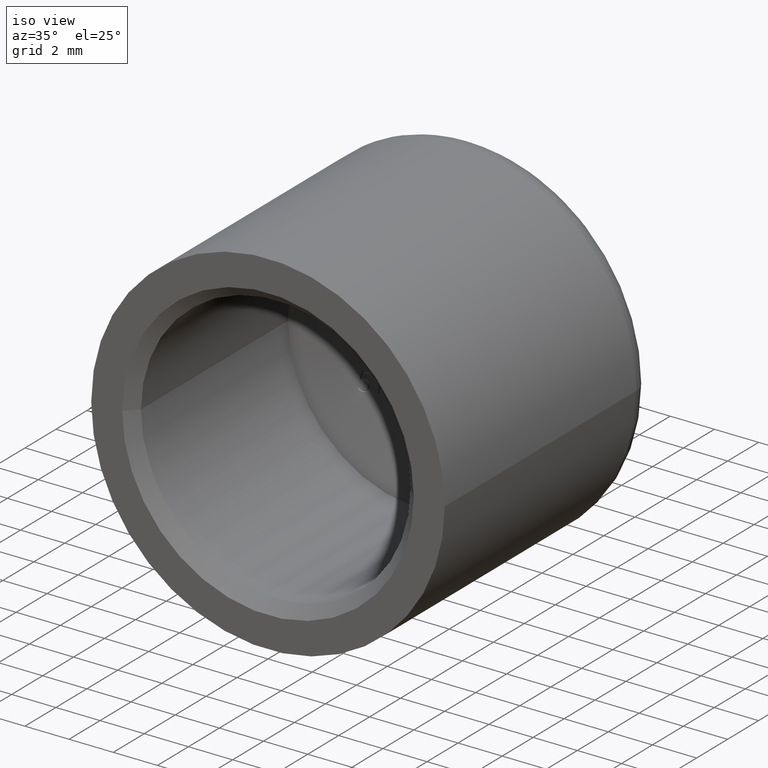
[diagram: clean part render]
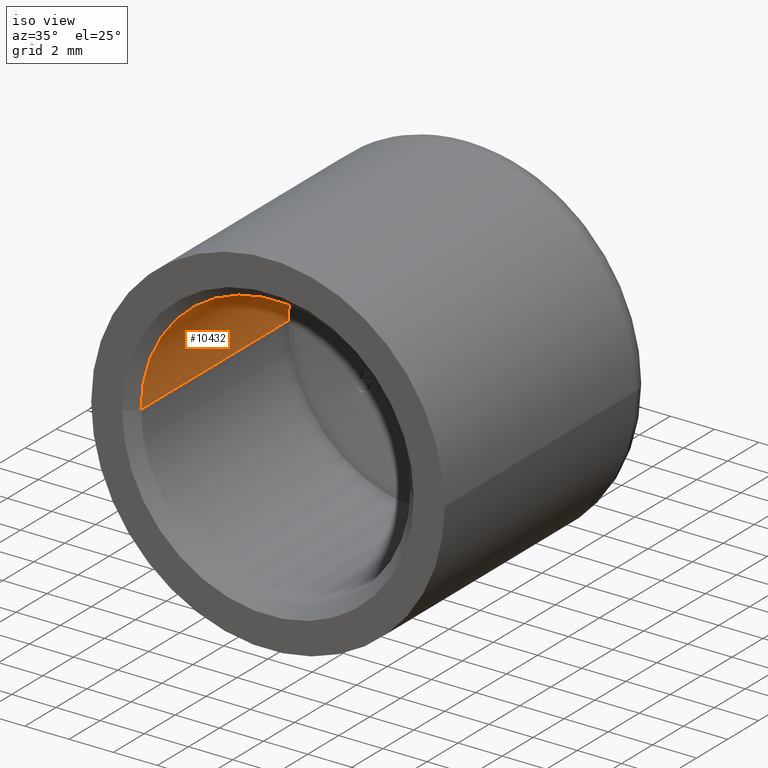
[diagram: same view with one face highlighted and labeled with its STEP entity id]
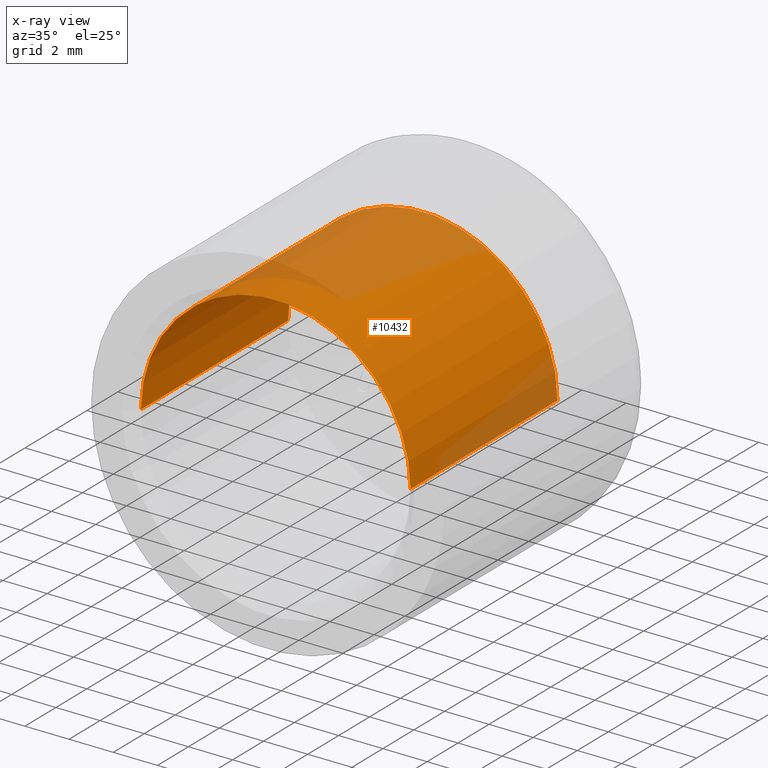
[diagram: x-ray of the same camera — body ghosted, the highlighted face saturated]
A machine part, iso view. The second image highlights one B-rep face of the part: STEP entity #10432.
The next image is the same camera in x-ray: the body ghosted, the highlighted face saturated — about 29% of this face is hidden behind the body in this view.
In plain terms, the highlighted cylindrical surface (partial cylindrical patch) has radius 6.1 mm, axis along (0, -1, -0).
Its self-contained STEP definition (entity closure, byte-faithful):
#349 = CARTESIAN_POINT ( 'NONE',  ( 6.100000000000002309, 10.00000000000000000, 0.000000000000000000 ) ) ;
#382 = EDGE_CURVE ( 'NONE', #8572, #13173, #8005, .T. ) ;
#542 = CARTESIAN_POINT ( 'NONE',  ( 1.100672923152928116E-17, 10.00000000000000000, 0.000000000000000000 ) ) ;
#587 = CARTESIAN_POINT ( 'NONE',  ( 6.099999999999999645, 0.4999999999999987232, 0.000000000000000000 ) ) ;
#886 = CARTESIAN_POINT ( 'NONE',  ( 7.408651296675851309E-18, 11.63449007382982181, 0.000000000000000000 ) ) ;
#934 = DIRECTION ( 'NONE',  ( 2.201345846305856848E-18, -1.000000000000000000, -0.000000000000000000 ) ) ;
#962 = CARTESIAN_POINT ( 'NONE',  ( -6.099999999999999645, 0.4999999999999987232, 7.470345474798854293E-16 ) ) ;
#1803 = ORIENTED_EDGE ( 'NONE', *, *, #382, .T. ) ;
#2034 = DIRECTION ( 'NONE',  ( 2.201345846305856848E-18, -1.000000000000000000, -0.000000000000000000 ) ) ;
#2181 = CYLINDRICAL_SURFACE ( 'NONE', #10816, 6.099999999999999645 ) ;
#2527 = CIRCLE ( 'NONE', #11577, 6.099999999999999645 ) ;
#2916 = DIRECTION ( 'NONE',  ( 2.201345846305856848E-18, -1.000000000000000000, -0.000000000000000000 ) ) ;
#3031 = VERTEX_POINT ( 'NONE', #7170 ) ;
#3277 = DIRECTION ( 'NONE',  ( 1.000000000000000000, 0.000000000000000000, 0.000000000000000000 ) ) ;
#3820 = CARTESIAN_POINT ( 'NONE',  ( 6.099999999999999645, 11.63449007382982181, 0.000000000000000000 ) ) ;
#4035 = EDGE_LOOP ( 'NONE', ( #4174, #8004, #5922, #1803 ) ) ;
#4174 = ORIENTED_EDGE ( 'NONE', *, *, #9057, .F. ) ;
#4478 = DIRECTION ( 'NONE',  ( 1.000000000000000000, 0.000000000000000000, 0.000000000000000000 ) ) ;
#5070 = AXIS2_PLACEMENT_3D ( 'NONE', #6641, #12091, #4478 ) ;
#5612 = FACE_OUTER_BOUND ( 'NONE', #4035, .T. ) ;
#5922 = ORIENTED_EDGE ( 'NONE', *, *, #12744, .T. ) ;
#6008 = VECTOR ( 'NONE', #6015, 1000.000000000000000 ) ;
#6015 = DIRECTION ( 'NONE',  ( 2.201345846305856848E-18, -1.000000000000000000, -0.000000000000000000 ) ) ;
#6108 = CARTESIAN_POINT ( 'NONE',  ( -6.099999999999999645, 11.63449007382982181, 7.470345474798854293E-16 ) ) ;
#6641 = CARTESIAN_POINT ( 'NONE',  ( 3.191951477143492738E-17, 0.4999999999999987232, 0.000000000000000000 ) ) ;
#7170 = CARTESIAN_POINT ( 'NONE',  ( -6.100000000000002309, 10.00000000000000000, 7.470345474798856265E-16 ) ) ;
#7399 = LINE ( 'NONE', #6108, #6008 ) ;
#8004 = ORIENTED_EDGE ( 'NONE', *, *, #10804, .F. ) ;
#8005 = CIRCLE ( 'NONE', #5070, 6.099999999999999645 ) ;
#8051 = VECTOR ( 'NONE', #2916, 1000.000000000000000 ) ;
#8572 = VERTEX_POINT ( 'NONE', #587 ) ;
#9057 = EDGE_CURVE ( 'NONE', #3031, #13173, #7399, .T. ) ;
#9775 = LINE ( 'NONE', #3820, #8051 ) ;
#10432 = ADVANCED_FACE ( 'NONE', ( #5612 ), #2181, .F. ) ;
#10804 = EDGE_CURVE ( 'NONE', #13365, #3031, #2527, .T. ) ;
#10816 = AXIS2_PLACEMENT_3D ( 'NONE', #886, #934, #3277 ) ;
#10832 = DIRECTION ( 'NONE',  ( 1.000000000000000000, 0.000000000000000000, 0.000000000000000000 ) ) ;
#11577 = AXIS2_PLACEMENT_3D ( 'NONE', #542, #2034, #10832 ) ;
#12091 = DIRECTION ( 'NONE',  ( 2.201345846305856848E-18, -1.000000000000000000, 0.000000000000000000 ) ) ;
#12744 = EDGE_CURVE ( 'NONE', #13365, #8572, #9775, .T. ) ;
#13173 = VERTEX_POINT ( 'NONE', #962 ) ;
#13365 = VERTEX_POINT ( 'NONE', #349 ) ;